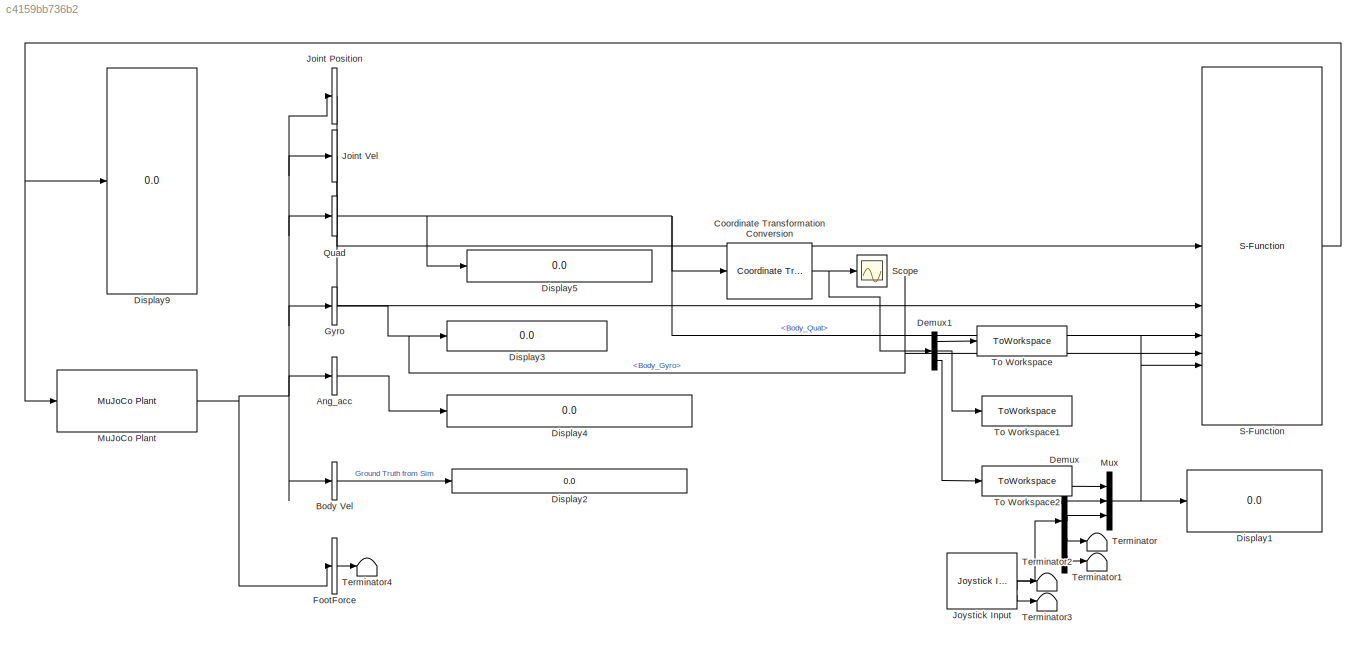
MODEL slx_c4159bb736b2
KIND model
CONFIG AbsTol = auto
CONFIG EnableMultiTasking = off
CONFIG MaxStep = auto
CONFIG MinStep = auto
CONFIG RelTol = 1e-3
CONFIG SampleTimeConstraint = Unconstrained
CONFIG SolverName = VariableStepAuto
CONFIG StartTime = 0.0
CONFIG StopTime = 150
BLOCK [BusSelector] Ang_acc
  OutputAsBus = on
  OutputSignals = Body_Acc
BLOCK [BusSelector] Body Vel
  OutputAsBus = on
  OutputSignals = Body_Vel_velocimeter
BLOCK [Reference] Coordinate Transformation Conversion  REF=robotcorelib/Coordinate Transformation Conversion
  LibrarySourceBlock = robotutilslib/Coordinate Transformation Conversion
  SourceBlock = robotcorelib/Coordinate Transformation Conversion
  SourceType = robotics.slcore.internal.block.CoordinateTransformationConversion
BLOCK [Demux] Demux
  Outputs = 5
BLOCK [Demux] Demux1
  Outputs = 3
BLOCK [Display] Display1
  Decimation = 1
BLOCK [Display] Display2
  Decimation = 1
BLOCK [Display] Display3
  Decimation = 1
BLOCK [Display] Display4
  Decimation = 1
BLOCK [Display] Display5
  Decimation = 1
BLOCK [Display] Display9
  Decimation = 1
BLOCK [BusSelector] FootForce
  OutputAsBus = on
  OutputSignals = FR_footForce,FL_footForce,RR_footForce,RL_footForce
BLOCK [BusSelector] Gyro
  OutputSignals = Body_Gyro
BLOCK [BusSelector] Joint Position
  OutputAsBus = on
  OutputSignals = FR_hip_pos,FR_thigh_pos,FR_calf_pos,FL_hip_pos,FL_thigh_pos,FL_calf_pos,RR_hip_pos,RR_thigh_pos,RR_calf_pos,RL_hip_pos,RL_thigh_pos,RL_calf_pos
BLOCK [BusSelector] Joint Vel
  OutputAsBus = on
  OutputSignals = FR_hip_vel,FR_thigh_vel,FR_calf_vel,FL_hip_vel,FL_thigh_vel,FL_calf_vel,RR_hip_vel,RR_thigh_vel,RR_calf_vel,RL_hip_vel,RL_thigh_vel,RL_calf_vel
BLOCK [Reference] Joystick Input  REF=vrlib/Joystick Input
  SourceBlock = vrlib/Joystick Input
  SourceType = Joystick Input
BLOCK [Reference] MuJoCo Plant  REF=mjLib/MuJoCo Plant
  SourceBlock = mjLib/MuJoCo Plant
  SourceProductName = MuJoCo Simulator
  SourceType = MuJoCo Plant
BLOCK [Mux] Mux
  DisplayOption = bar
  Inputs = 3
BLOCK [BusSelector] Quad
  OutputSignals = Body_Quat
BLOCK [S-Function] S-Function
  EnableBusSupport = off
  FunctionName = a1_main
  SFcnIsStateOwnerBlock = off
  SFunctionDeploymentMode = off
BLOCK [Scope] Scope
  Floating = off
  NumInputPorts = 1
  ScopeSpecificationString = Simulink.scopes.TimeScopeBlockCfg('CurrentConfiguration', extmgr.ConfigurationSet(extmgr.Configuration('Core','General UI',true),extmgr.Configuration('Core','Source UI',true),extmgr.Configuration('Sources','WiredSimulink',true,'DataLogging',true),extmgr.Configuration('Visuals','Time Domain',true,'SerializedDisplays',{struct('MinYLimReal','-0.13592','MaxYLimReal','0.40572','YLabelReal','','MinYLimM...<+1633ch>
BLOCK [Terminator] Terminator
BLOCK [Terminator] Terminator1
BLOCK [Terminator] Terminator2
BLOCK [Terminator] Terminator3
BLOCK [Terminator] Terminator4
BLOCK [ToWorkspace] To Workspace
  FixptAsFi = on
  MaxDataPoints = inf
  SampleTime = -1
  SaveFormat = Timeseries
  VariableName = simout
BLOCK [ToWorkspace] To Workspace1
  FixptAsFi = on
  MaxDataPoints = inf
  SampleTime = -1
  SaveFormat = Timeseries
  VariableName = simout1
BLOCK [ToWorkspace] To Workspace2
  FixptAsFi = on
  MaxDataPoints = inf
  SampleTime = -1
  SaveFormat = Timeseries
  VariableName = simout2
LINE Ang_acc:1 -> Display4:1
LINE Body Vel:1 -> Display2:1
NET Coordinate Transformation Conversion:1 -> Demux1:1, Scope:1
LINE Demux1:1 -> To Workspace:1
LINE Demux1:2 -> To Workspace1:1
LINE Demux1:3 -> To Workspace2:1
LINE Demux:1 -> Mux:1
LINE Demux:2 -> Mux:2
LINE Demux:3 -> Mux:3
LINE Demux:4 -> Terminator:1
LINE Demux:5 -> Terminator1:1
LINE FootForce:1 -> Terminator4:1
NET Gyro:1 -> Display3:1, S-Function:4
LINE Joint Position:1 -> S-Function:1
LINE Joint Vel:1 -> S-Function:2
LINE Joystick Input:1 -> Demux:1
LINE Joystick Input:2 -> Terminator2:1
LINE Joystick Input:3 -> Terminator3:1
NET MuJoCo Plant:1 -> Ang_acc:1, Body Vel:1, FootForce:1, Gyro:1, Joint Position:1, Joint Vel:1, Quad:1
NET Mux:1 -> Display1:1, S-Function:5
NET Quad:1 -> Coordinate Transformation Conversion:1, Display5:1, S-Function:3
NET S-Function:1 -> Display9:1, MuJoCo Plant:1
note: NET lines group one-source signal fan-out (src -> all destinations, sorted); 1:1 wires keep LINE
